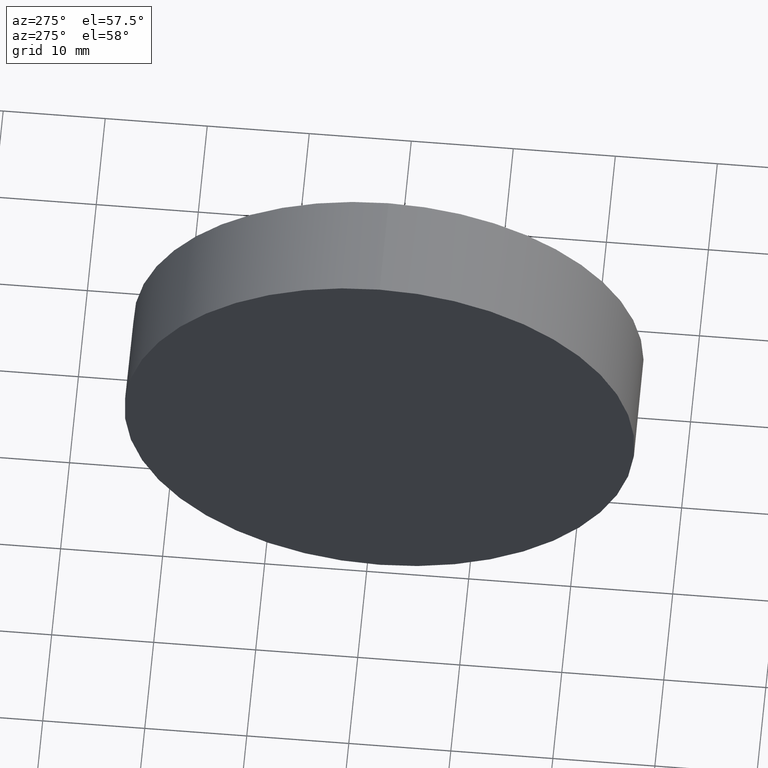
[diagram: clean part render]
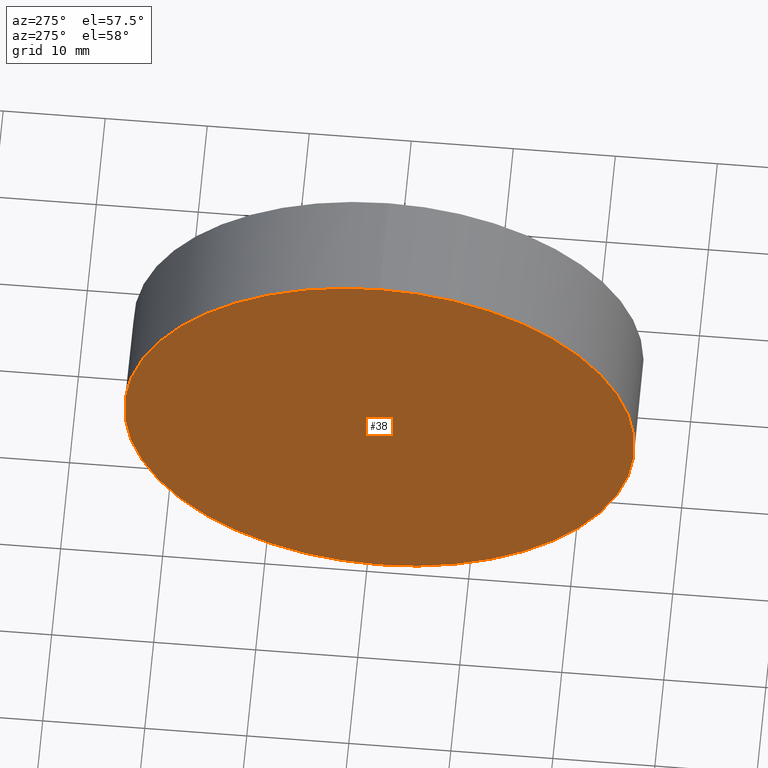
[diagram: same view with one face highlighted and labeled with its STEP entity id]
A machine part, auxiliary view. The second image highlights one B-rep face of the part: STEP entity #38.
In plain terms, the highlighted planar face has unit normal (1, 0, 0).
Its self-contained STEP definition (entity closure, byte-faithful):
#8 = EDGE_CURVE ( 'NONE', #123, #41, #68, .T. ) ;
#12 = CARTESIAN_POINT ( 'NONE',  ( 230.1853110698390300, 138.7560422467448700, -24.99999999999999300 ) ) ;
#38 = ADVANCED_FACE ( 'NONE', ( #93 ), #129, .F. ) ;
#39 = AXIS2_PLACEMENT_3D ( 'NONE', #75, #100, #164 ) ;
#41 = VERTEX_POINT ( 'NONE', #12 ) ;
#46 = CARTESIAN_POINT ( 'NONE',  ( 230.1853110698390300, 138.7560422467448700, 0.0000000000000000000 ) ) ;
#68 = CIRCLE ( 'NONE', #143, 24.99999999999999300 ) ;
#69 = DIRECTION ( 'NONE',  ( -1.000000000000000000, -0.0000000000000000000, -0.0000000000000000000 ) ) ;
#70 = CARTESIAN_POINT ( 'NONE',  ( 230.1853110698390300, 138.7560422467448700, 0.0000000000000000000 ) ) ;
#72 = EDGE_LOOP ( 'NONE', ( #106, #81 ) ) ;
#75 = CARTESIAN_POINT ( 'NONE',  ( 230.1853110698390300, 138.7560422467448700, 0.0000000000000000000 ) ) ;
#76 = DIRECTION ( 'NONE',  ( 1.000000000000000000, 0.0000000000000000000, 0.0000000000000000000 ) ) ;
#81 = ORIENTED_EDGE ( 'NONE', *, *, #172, .T. ) ;
#82 = AXIS2_PLACEMENT_3D ( 'NONE', #46, #76, #177 ) ;
#84 = DIRECTION ( 'NONE',  ( 0.0000000000000000000, 0.0000000000000000000, 1.000000000000000000 ) ) ;
#93 = FACE_OUTER_BOUND ( 'NONE', #72, .T. ) ;
#100 = DIRECTION ( 'NONE',  ( -1.000000000000000000, -0.0000000000000000000, -0.0000000000000000000 ) ) ;
#105 = CARTESIAN_POINT ( 'NONE',  ( 230.1853110698390300, 138.7560422467448700, 24.99999999999999300 ) ) ;
#106 = ORIENTED_EDGE ( 'NONE', *, *, #8, .T. ) ;
#123 = VERTEX_POINT ( 'NONE', #105 ) ;
#129 = PLANE ( 'NONE',  #82 ) ;
#141 = CIRCLE ( 'NONE', #39, 24.99999999999999300 ) ;
#143 = AXIS2_PLACEMENT_3D ( 'NONE', #70, #69, #84 ) ;
#164 = DIRECTION ( 'NONE',  ( 0.0000000000000000000, 0.0000000000000000000, 1.000000000000000000 ) ) ;
#172 = EDGE_CURVE ( 'NONE', #41, #123, #141, .T. ) ;
#177 = DIRECTION ( 'NONE',  ( 0.0000000000000000000, 0.0000000000000000000, -1.000000000000000000 ) ) ;